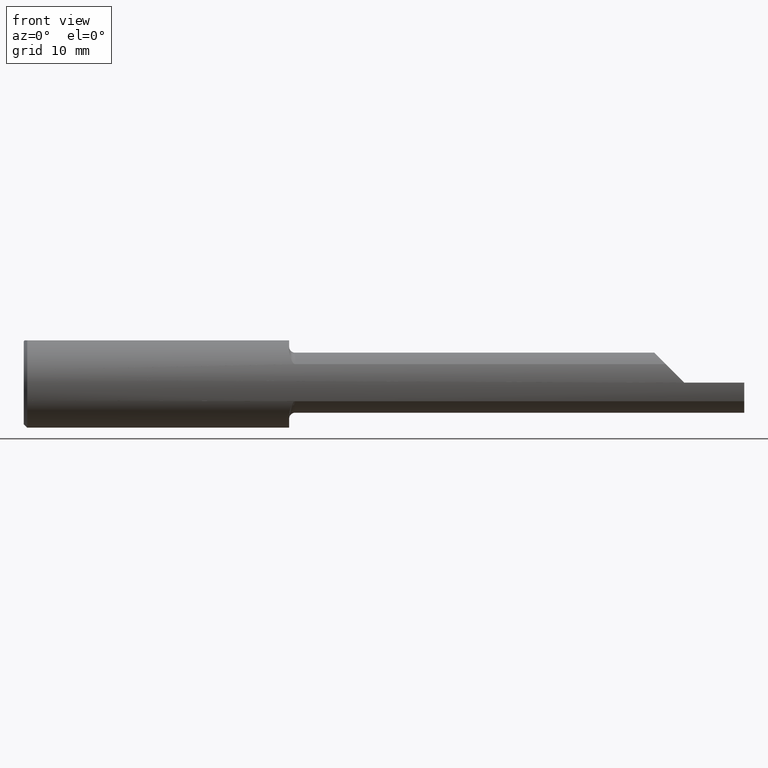
[diagram: clean part render]
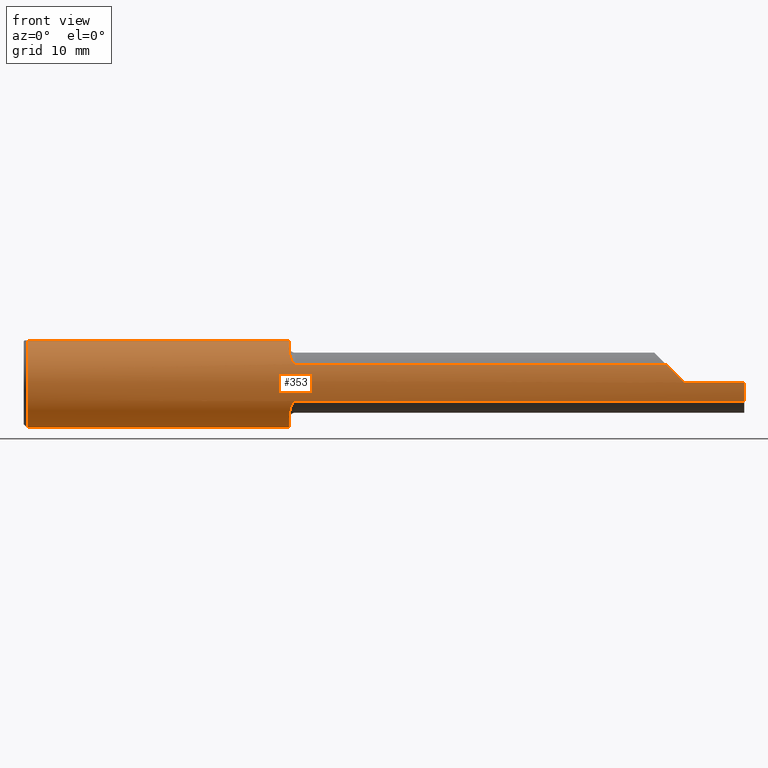
[diagram: same view with one face highlighted and labeled with its STEP entity id]
A machine part, front view. The second image highlights one B-rep face of the part: STEP entity #353.
In plain terms, the highlighted cylindrical surface (partial cylindrical patch) has radius 4.7587 mm, axis along (-1, -0, -0).
Its self-contained STEP definition (entity closure, byte-faithful):
#2 = VERTEX_POINT ( 'NONE', #913 ) ;
#22 = CARTESIAN_POINT ( 'NONE',  ( 1.123606395404012082, -0.1693970531853374040, -0.08003777040702685086 ) ) ;
#31 = CARTESIAN_POINT ( 'NONE',  ( 1.126406265684706920, -0.1703893073657098967, 0.07790344355110692676 ) ) ;
#45 = EDGE_CURVE ( 'NONE', #536, #266, #603, .T. ) ;
#46 = DIRECTION ( 'NONE',  ( -1.000000000000000000, -0.000000000000000000, -0.000000000000000000 ) ) ;
#47 = CARTESIAN_POINT ( 'NONE',  ( 1.123558876738254053, -0.1693773766851884854, 0.08007975305238293484 ) ) ;
#73 = EDGE_CURVE ( 'NONE', #628, #916, #808, .T. ) ;
#76 = DIRECTION ( 'NONE',  ( 1.000000000000000000, -0.000000000000000000, -0.000000000000000000 ) ) ;
#90 = ORIENTED_EDGE ( 'NONE', *, *, #538, .T. ) ;
#92 = DIRECTION ( 'NONE',  ( 0.000000000000000000, 0.000000000000000000, 1.000000000000000000 ) ) ;
#94 = VERTEX_POINT ( 'NONE', #112 ) ;
#100 = ORIENTED_EDGE ( 'NONE', *, *, #191, .T. ) ;
#102 = CARTESIAN_POINT ( 'NONE',  ( 1.119299808151414055, -0.1667638676707169920, -0.08543442767820323691 ) ) ;
#111 = CARTESIAN_POINT ( 'NONE',  ( 1.128119196786478762, -0.1707639599170697742, 0.07706940050007768384 ) ) ;
#112 = CARTESIAN_POINT ( 'NONE',  ( 1.105000000000000204, -0.1232518659295093050, 0.1410992560040422727 ) ) ;
#126 = EDGE_CURVE ( 'NONE', #231, #94, #462, .T. ) ;
#135 = DIRECTION ( 'NONE',  ( 0.000000000000000000, 0.000000000000000000, -1.000000000000000000 ) ) ;
#136 = ORIENTED_EDGE ( 'NONE', *, *, #778, .T. ) ;
#142 = CIRCLE ( 'NONE', #946, 0.1873499999999999888 ) ;
#151 = CARTESIAN_POINT ( 'NONE',  ( 2.002500000000000391, -0.1707639599170698019, -0.07706940050007766996 ) ) ;
#160 = VECTOR ( 'NONE', #46, 39.37007874015748143 ) ;
#182 = CARTESIAN_POINT ( 'NONE',  ( 1.119265545959849284, -0.1667364282984899193, 0.08548857678050766906 ) ) ;
#185 = CARTESIAN_POINT ( 'NONE',  ( 2.002500000000000391, -0.1707639599170698019, 0.07706940050007766996 ) ) ;
#191 = EDGE_CURVE ( 'NONE', #765, #611, #142, .T. ) ;
#199 = DIRECTION ( 'NONE',  ( 0.000000000000000000, 0.000000000000000000, 1.000000000000000000 ) ) ;
#202 = DIRECTION ( 'NONE',  ( 1.000000000000000000, 0.000000000000000000, 0.000000000000000000 ) ) ;
#208 = VECTOR ( 'NONE', #342, 39.37007874015748143 ) ;
#209 = CIRCLE ( 'NONE', #258, 0.1873499999999999888 ) ;
#211 = CARTESIAN_POINT ( 'NONE',  ( 0.01500000000000407431, 0.000000000000000000, 0.000000000000000000 ) ) ;
#212 = DIRECTION ( 'NONE',  ( -1.000000000000000000, -0.000000000000000000, -0.000000000000000000 ) ) ;
#217 = VERTEX_POINT ( 'NONE', #683 ) ;
#228 = DIRECTION ( 'NONE',  ( 0.000000000000000000, 0.000000000000000000, -1.000000000000000000 ) ) ;
#229 = CARTESIAN_POINT ( 'NONE',  ( 1.105000000000000204, -0.06325108694718215019, 0.1763499999999999790 ) ) ;
#231 = VERTEX_POINT ( 'NONE', #229 ) ;
#238 = CARTESIAN_POINT ( 'NONE',  ( 1.106555970616603712, -0.1439812988895032841, -0.1207222593517345149 ) ) ;
#249 = VERTEX_POINT ( 'NONE', #677 ) ;
#250 = CARTESIAN_POINT ( 'NONE',  ( 1.130000000000000115, -0.1707639599170698019, -0.07706940050007766996 ) ) ;
#252 = CARTESIAN_POINT ( 'NONE',  ( 0.01500000000000407431, 0.06325108694718213631, 0.1763499999999999790 ) ) ;
#256 = VECTOR ( 'NONE', #823, 39.37007874015748143 ) ;
#258 = AXIS2_PLACEMENT_3D ( 'NONE', #211, #741, #228 ) ;
#265 = CARTESIAN_POINT ( 'NONE',  ( 1.105424272813302800, -0.1340287381043765713, 0.1311054684688081062 ) ) ;
#266 = VERTEX_POINT ( 'NONE', #894 ) ;
#278 = CARTESIAN_POINT ( 'NONE',  ( 1.111436535702075679, -0.1564726682735308738, 0.1032790376104839869 ) ) ;
#281 = EDGE_CURVE ( 'NONE', #249, #760, #591, .T. ) ;
#283 = DIRECTION ( 'NONE',  ( 1.000000000000000000, 0.000000000000000000, 0.000000000000000000 ) ) ;
#292 = EDGE_CURVE ( 'NONE', #231, #765, #960, .T. ) ;
#296 = ORIENTED_EDGE ( 'NONE', *, *, #924, .T. ) ;
#302 = AXIS2_PLACEMENT_3D ( 'NONE', #506, #283, #135 ) ;
#308 = CARTESIAN_POINT ( 'NONE',  ( 1.128132574457247683, -0.1707639599170697742, -0.07706940050007782261 ) ) ;
#322 = EDGE_CURVE ( 'NONE', #589, #249, #478, .T. ) ;
#329 = CARTESIAN_POINT ( 'NONE',  ( 1.130000000000000115, -0.1707639599170698019, 0.07706940050007766996 ) ) ;
#341 = CARTESIAN_POINT ( 'NONE',  ( 2.750000000000000444, 0.000000000000000000, 0.000000000000000000 ) ) ;
#342 = DIRECTION ( 'NONE',  ( 1.000000000000000000, 0.000000000000000000, 0.000000000000000000 ) ) ;
#343 = CARTESIAN_POINT ( 'NONE',  ( 3.000000000000000444, -0.1873499999999999610, -6.429183357567480113E-17 ) ) ;
#344 = CARTESIAN_POINT ( 'NONE',  ( 1.113471533398396218, -0.1602710687746327356, 0.09725558226055724953 ) ) ;
#345 = CARTESIAN_POINT ( 'NONE',  ( 1.105000000000000204, 0.000000000000000000, 0.000000000000000000 ) ) ;
#353 = ADVANCED_FACE ( 'NONE', ( #389 ), #480, .T. ) ;
#364 = EDGE_CURVE ( 'NONE', #536, #760, #745, .T. ) ;
#367 = AXIS2_PLACEMENT_3D ( 'NONE', #341, #804, #199 ) ;
#371 = CARTESIAN_POINT ( 'NONE',  ( 0.01500000000000407431, 0.000000000000000000, 0.000000000000000000 ) ) ;
#389 = FACE_OUTER_BOUND ( 'NONE', #450, .T. ) ;
#391 = ORIENTED_EDGE ( 'NONE', *, *, #507, .T. ) ;
#396 = CARTESIAN_POINT ( 'NONE',  ( 2.750000000000000444, -0.1873496730715054903, 0.0003499999999995605151 ) ) ;
#407 = CARTESIAN_POINT ( 'NONE',  ( 0.01500000000000406737, -0.06325108694718213631, 0.1763499999999999790 ) ) ;
#409 = CARTESIAN_POINT ( 'NONE',  ( 1.105000000000000204, -0.1232518659295093050, -0.1410992560040422727 ) ) ;
#415 = VECTOR ( 'NONE', #202, 39.37007874015748143 ) ;
#416 = CARTESIAN_POINT ( 'NONE',  ( 1.122402770576354403, -0.1687580686002391195, 0.08138221229323122641 ) ) ;
#421 = CARTESIAN_POINT ( 'NONE',  ( 2.673280599499922694, -0.1707639599170701628, 0.07706940050007689280 ) ) ;
#439 = CARTESIAN_POINT ( 'NONE',  ( 1.130000000000000115, -0.1707639599170698019, 0.07706940050007766996 ) ) ;
#440 = VERTEX_POINT ( 'NONE', #252 ) ;
#450 = EDGE_LOOP ( 'NONE', ( #738, #792, #296, #90, #136, #832, #391, #931, #909, #100, #459, #552, #546, #703 ) ) ;
#454 = CARTESIAN_POINT ( 'NONE',  ( 3.000000000000000444, -0.06325108694718233060, 0.1763499999999999235 ) ) ;
#459 = ORIENTED_EDGE ( 'NONE', *, *, #580, .T. ) ;
#462 = CIRCLE ( 'NONE', #569, 0.1873499999999999888 ) ;
#478 = CIRCLE ( 'NONE', #302, 0.1873499999999999888 ) ;
#480 = CYLINDRICAL_SURFACE ( 'NONE', #503, 0.1873499999999999888 ) ;
#500 = CARTESIAN_POINT ( 'NONE',  ( 1.105000000000000204, 0.000000000000000000, 0.000000000000000000 ) ) ;
#502 =( BOUNDED_CURVE ( )  B_SPLINE_CURVE ( 3, ( #396, #790, #626, #560 ),
 .UNSPECIFIED., .F., .T. ) 
 B_SPLINE_CURVE_WITH_KNOTS ( ( 4, 4 ),
 ( 4.714257142666967049, 5.136341099405663968 ),
 .UNSPECIFIED. ) 
 CURVE ( )  GEOMETRIC_REPRESENTATION_ITEM ( )  RATIONAL_B_SPLINE_CURVE ( ( 1.000000000000000000, 0.9852087820824332320, 0.9852087820824332320, 1.000000000000000000 ) ) 
 REPRESENTATION_ITEM ( '' )  );
#503 = AXIS2_PLACEMENT_3D ( 'NONE', #848, #838, #92 ) ;
#506 = CARTESIAN_POINT ( 'NONE',  ( 3.000000000000000444, 0.000000000000000000, 0.000000000000000000 ) ) ;
#507 = EDGE_CURVE ( 'NONE', #628, #94, #600, .T. ) ;
#510 = DIRECTION ( 'NONE',  ( 0.000000000000000000, 0.000000000000000000, -1.000000000000000000 ) ) ;
#514 = CARTESIAN_POINT ( 'NONE',  ( 3.000000000000000444, -0.1873499999999998222, -6.429183357567480113E-17 ) ) ;
#530 = CARTESIAN_POINT ( 'NONE',  ( 1.104999999999999982, -0.1343272889970693329, -0.1314247431986990677 ) ) ;
#536 = VERTEX_POINT ( 'NONE', #409 ) ;
#538 = EDGE_CURVE ( 'NONE', #2, #217, #949, .T. ) ;
#546 = ORIENTED_EDGE ( 'NONE', *, *, #45, .F. ) ;
#552 = ORIENTED_EDGE ( 'NONE', *, *, #564, .T. ) ;
#560 = CARTESIAN_POINT ( 'NONE',  ( 2.673280599499922694, -0.1707639599170701628, 0.07706940050007689280 ) ) ;
#564 = EDGE_CURVE ( 'NONE', #440, #266, #575, .T. ) ;
#567 = DIRECTION ( 'NONE',  ( 1.000000000000000000, 0.000000000000000000, 0.000000000000000000 ) ) ;
#569 = AXIS2_PLACEMENT_3D ( 'NONE', #500, #567, #870 ) ;
#575 = LINE ( 'NONE', #879, #415 ) ;
#576 = DIRECTION ( 'NONE',  ( 1.000000000000000000, 0.000000000000000000, 0.000000000000000000 ) ) ;
#580 = EDGE_CURVE ( 'NONE', #611, #440, #209, .T. ) ;
#589 = VERTEX_POINT ( 'NONE', #514 ) ;
#591 = LINE ( 'NONE', #151, #731 ) ;
#600 = B_SPLINE_CURVE_WITH_KNOTS ( 'NONE', 3,
 ( #329, #111, #31, #47, #416, #182, #936, #344, #278, #724, #646, #265, #721, #791 ),
 .UNSPECIFIED., .F., .F.,
 ( 4, 2, 2, 2, 2, 2, 4 ),
 ( 0.000000000000000000, 0.0001403017184444750652, 0.0002806034368889501304, 0.0005612068737779071998, 0.001122413747555818086, 0.001683620621333729080, 0.002244827495111640075 ),
 .UNSPECIFIED. ) ;
#603 = CIRCLE ( 'NONE', #811, 0.1873499999999999888 ) ;
#611 = VERTEX_POINT ( 'NONE', #669 ) ;
#617 = CARTESIAN_POINT ( 'NONE',  ( 1.122430508348289280, -0.1687732045416835414, -0.08135065796925480819 ) ) ;
#626 = CARTESIAN_POINT ( 'NONE',  ( 2.697486258657503466, -0.1816884877910426022, 0.05286374134249623852 ) ) ;
#627 = CARTESIAN_POINT ( 'NONE',  ( 1.117704374933955025, -0.1652286770924341619, -0.08837992419368187469 ) ) ;
#628 = VERTEX_POINT ( 'NONE', #439 ) ;
#646 = CARTESIAN_POINT ( 'NONE',  ( 1.107031986092417597, -0.1437385609081069382, 0.1203809478627893975 ) ) ;
#669 = CARTESIAN_POINT ( 'NONE',  ( 0.01500000000000407431, 0.000000000000000000, -0.1873499999999999888 ) ) ;
#677 = CARTESIAN_POINT ( 'NONE',  ( 3.000000000000000444, -0.1707639599170698019, -0.07706940050007768384 ) ) ;
#683 = CARTESIAN_POINT ( 'NONE',  ( 2.750000000000000444, -0.1873496730715054903, 0.0003499999999995605151 ) ) ;
#701 = CARTESIAN_POINT ( 'NONE',  ( 1.113464385422889391, -0.1602677418389838737, -0.09726402398944664074 ) ) ;
#703 = ORIENTED_EDGE ( 'NONE', *, *, #364, .T. ) ;
#721 = CARTESIAN_POINT ( 'NONE',  ( 1.105000000000000426, -0.1287813884456101288, 0.1362691528049926049 ) ) ;
#724 = CARTESIAN_POINT ( 'NONE',  ( 1.108207941101452709, -0.1482224317505124178, 0.1148057762150968275 ) ) ;
#726 = LINE ( 'NONE', #343, #160 ) ;
#731 = VECTOR ( 'NONE', #212, 39.37007874015748143 ) ;
#738 = ORIENTED_EDGE ( 'NONE', *, *, #281, .F. ) ;
#741 = DIRECTION ( 'NONE',  ( 1.000000000000000000, -0.000000000000000000, -0.000000000000000000 ) ) ;
#745 = B_SPLINE_CURVE_WITH_KNOTS ( 'NONE', 3,
 ( #911, #530, #238, #785, #701, #627, #102, #617, #22, #772, #308, #908 ),
 .UNSPECIFIED., .F., .F.,
 ( 4, 2, 2, 2, 2, 4 ),
 ( 0.000000000000000000, 0.001104617015978696893, 0.001656925523968045232, 0.001933079777962719509, 0.002071156904960056756, 0.002209234031957393787 ),
 .UNSPECIFIED. ) ;
#760 = VERTEX_POINT ( 'NONE', #250 ) ;
#765 = VERTEX_POINT ( 'NONE', #407 ) ;
#772 = CARTESIAN_POINT ( 'NONE',  ( 1.126412728618680692, -0.1703887611576448968, -0.07790427710188338462 ) ) ;
#778 = EDGE_CURVE ( 'NONE', #217, #916, #502, .T. ) ;
#785 = CARTESIAN_POINT ( 'NONE',  ( 1.111432066522875850, -0.1564710502669968972, -0.1032857535508501790 ) ) ;
#790 = CARTESIAN_POINT ( 'NONE',  ( 2.723443328839087574, -0.1873000608423837643, 0.02690667116091299133 ) ) ;
#791 = CARTESIAN_POINT ( 'NONE',  ( 1.105000000000000204, -0.1232518659295093050, 0.1410992560040422727 ) ) ;
#792 = ORIENTED_EDGE ( 'NONE', *, *, #322, .F. ) ;
#793 = DIRECTION ( 'NONE',  ( 0.000000000000000000, 0.000000000000000000, -1.000000000000000000 ) ) ;
#804 = DIRECTION ( 'NONE',  ( -1.000000000000000000, -0.000000000000000000, -0.000000000000000000 ) ) ;
#808 = LINE ( 'NONE', #185, #208 ) ;
#811 = AXIS2_PLACEMENT_3D ( 'NONE', #345, #576, #793 ) ;
#823 = DIRECTION ( 'NONE',  ( -1.000000000000000000, -0.000000000000000000, -0.000000000000000000 ) ) ;
#832 = ORIENTED_EDGE ( 'NONE', *, *, #73, .F. ) ;
#838 = DIRECTION ( 'NONE',  ( -1.000000000000000000, -0.000000000000000000, -0.000000000000000000 ) ) ;
#848 = CARTESIAN_POINT ( 'NONE',  ( 3.000000000000000444, 0.000000000000000000, 0.000000000000000000 ) ) ;
#870 = DIRECTION ( 'NONE',  ( 0.000000000000000000, 0.000000000000000000, -1.000000000000000000 ) ) ;
#879 = CARTESIAN_POINT ( 'NONE',  ( 3.000000000000000444, 0.06325108694718233060, 0.1763499999999999235 ) ) ;
#894 = CARTESIAN_POINT ( 'NONE',  ( 1.105000000000000204, 0.06325108694718233060, 0.1763499999999999790 ) ) ;
#908 = CARTESIAN_POINT ( 'NONE',  ( 1.130000000000000115, -0.1707639599170698019, -0.07706940050007766996 ) ) ;
#909 = ORIENTED_EDGE ( 'NONE', *, *, #292, .T. ) ;
#911 = CARTESIAN_POINT ( 'NONE',  ( 1.105000000000000204, -0.1232518659295093050, -0.1410992560040422727 ) ) ;
#913 = CARTESIAN_POINT ( 'NONE',  ( 2.750000000000000444, -0.1873499999999999610, -6.429183357567478880E-17 ) ) ;
#916 = VERTEX_POINT ( 'NONE', #421 ) ;
#924 = EDGE_CURVE ( 'NONE', #589, #2, #726, .T. ) ;
#931 = ORIENTED_EDGE ( 'NONE', *, *, #126, .F. ) ;
#936 = CARTESIAN_POINT ( 'NONE',  ( 1.117679829691370808, -0.1652024577544480566, 0.08842811073770927288 ) ) ;
#946 = AXIS2_PLACEMENT_3D ( 'NONE', #371, #76, #510 ) ;
#949 = CIRCLE ( 'NONE', #367, 0.1873499999999999888 ) ;
#960 = LINE ( 'NONE', #454, #256 ) ;